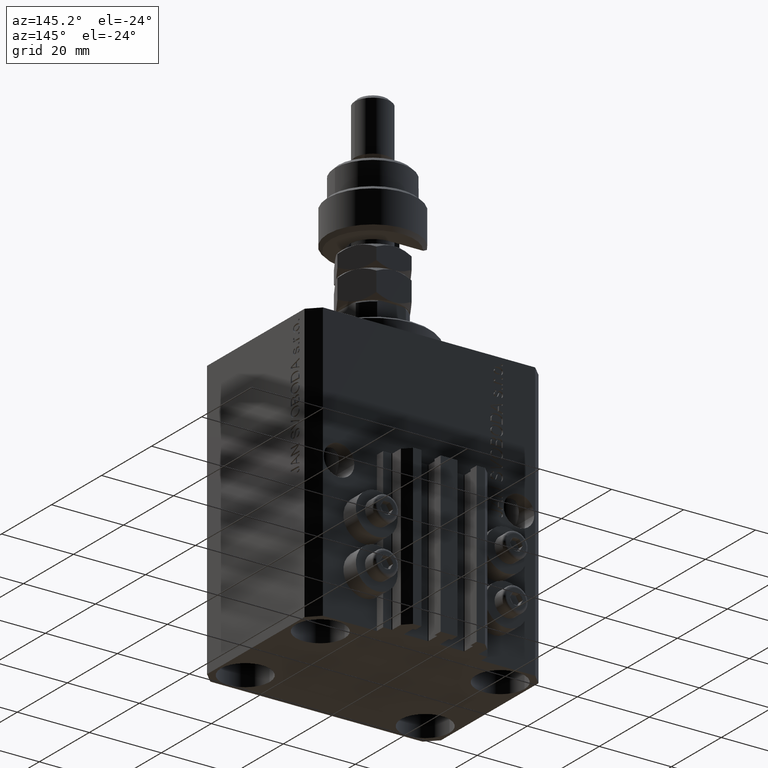
[diagram: clean part render]
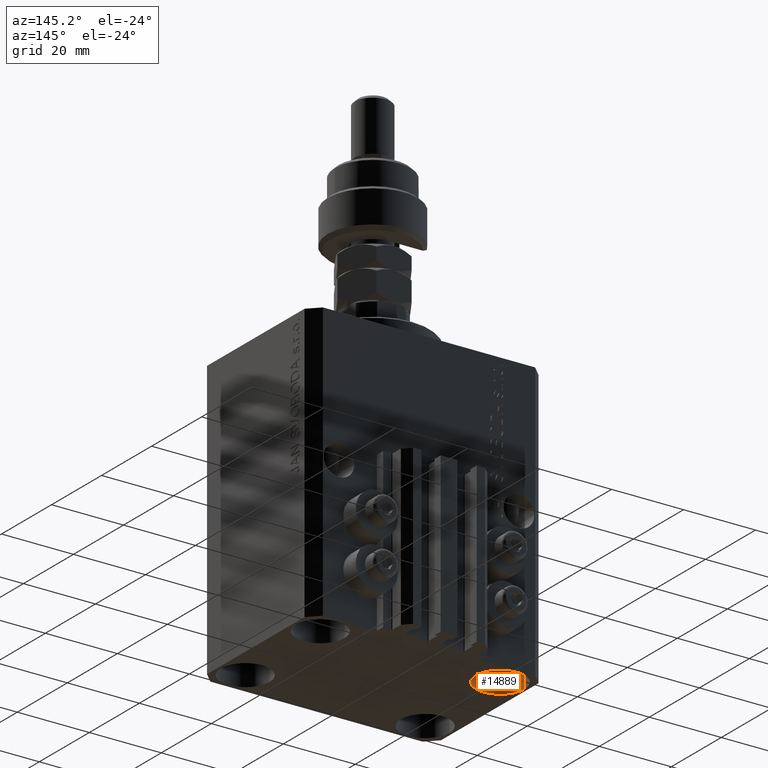
[diagram: same view with one face highlighted and labeled with its STEP entity id]
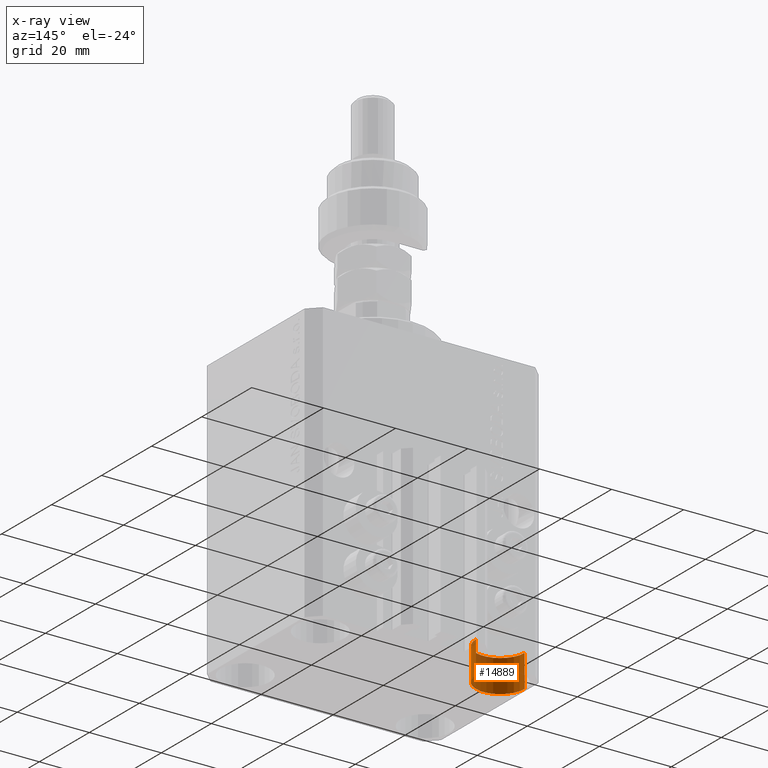
[diagram: x-ray of the same camera — body ghosted, the highlighted face saturated]
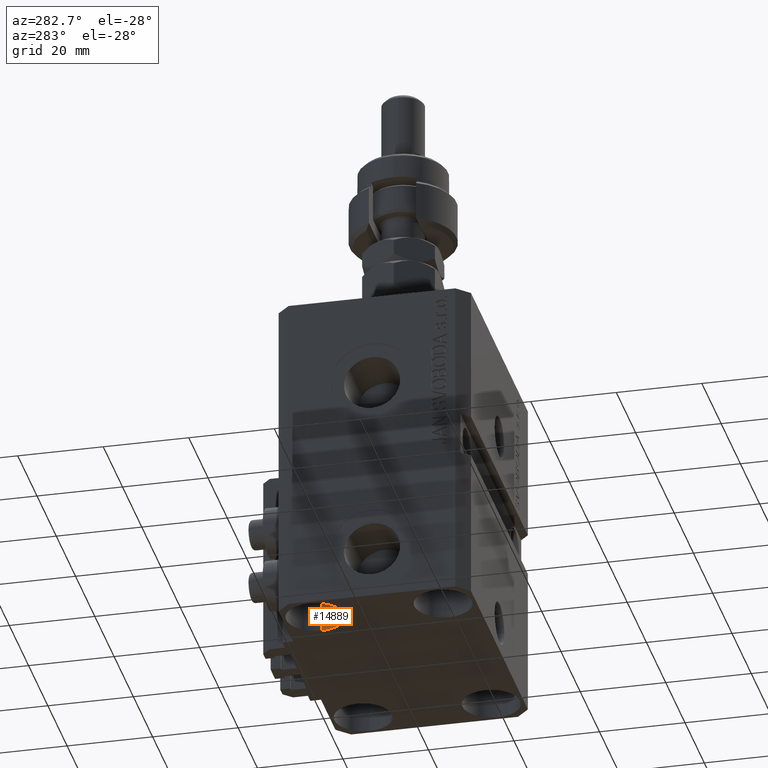
[diagram: same view with one face highlighted and labeled with its STEP entity id]
A machine part, auxiliary view. The second image highlights one B-rep face of the part: STEP entity #14889.
The next image is the same camera in x-ray: the body ghosted, the highlighted face saturated — about 5% of this face is hidden behind the body in this view.
A second angle (auxiliary view) of the same face is appended — the face is thin or edge-on in the first view.
In plain terms, the highlighted cylindrical surface (edge-blend (fillet) strip) has radius 6.75 mm, axis along (-0, -0, -1).
Its self-contained STEP definition (entity closure, byte-faithful):
#422 = EDGE_CURVE ( 'NONE', #49533, #36303, #38922, .T. ) ;
#2192 = EDGE_CURVE ( 'NONE', #6657, #35960, #44485, .T. ) ;
#3426 = CYLINDRICAL_SURFACE ( 'NONE', #37160, 6.750000000022533087 ) ;
#3882 = DIRECTION ( 'NONE',  ( 1.000000000000000000, 0.000000000000000000, 0.000000000000000000 ) ) ;
#6657 = VERTEX_POINT ( 'NONE', #45995 ) ;
#7952 = FACE_OUTER_BOUND ( 'NONE', #48334, .T. ) ;
#8904 = ORIENTED_EDGE ( 'NONE', *, *, #422, .T. ) ;
#10328 = DIRECTION ( 'NONE',  ( -0.000000000000000000, -0.000000000000000000, 1.000000000000000000 ) ) ;
#10384 = AXIS2_PLACEMENT_3D ( 'NONE', #17671, #10328, #21476 ) ;
#10385 = EDGE_CURVE ( 'NONE', #6657, #49533, #27339, .T. ) ;
#10780 = CARTESIAN_POINT ( 'NONE',  ( -31.75000000002253842, 15.00000000000000000, -68.00000000000000000 ) ) ;
#10999 = VECTOR ( 'NONE', #26212, 1000.000000000000000 ) ;
#11413 = ORIENTED_EDGE ( 'NONE', *, *, #2192, .F. ) ;
#14889 = ADVANCED_FACE ( 'NONE', ( #7952 ), #3426, .F. ) ;
#15928 = ORIENTED_EDGE ( 'NONE', *, *, #28209, .F. ) ;
#17671 = CARTESIAN_POINT ( 'NONE',  ( -25.00000000000000355, 15.00000000000000000, -68.00000000000000000 ) ) ;
#19077 = CARTESIAN_POINT ( 'NONE',  ( -25.00000000000000355, 15.00000000000000000, -68.00000000000000000 ) ) ;
#21476 = DIRECTION ( 'NONE',  ( 1.000000000000000000, 0.000000000000000000, 0.000000000000000000 ) ) ;
#21683 = CIRCLE ( 'NONE', #40276, 6.750000000022533087 ) ;
#23847 = CARTESIAN_POINT ( 'NONE',  ( -25.00000000000000355, 15.00000000000000000, -77.00000000000000000 ) ) ;
#26212 = DIRECTION ( 'NONE',  ( -0.000000000000000000, -0.000000000000000000, -1.000000000000000000 ) ) ;
#27155 = DIRECTION ( 'NONE',  ( -0.000000000000000000, -0.000000000000000000, -1.000000000000000000 ) ) ;
#27339 = CIRCLE ( 'NONE', #10384, 6.750000000022533087 ) ;
#28209 = EDGE_CURVE ( 'NONE', #35960, #36303, #21683, .T. ) ;
#31331 = DIRECTION ( 'NONE',  ( -0.000000000000000000, -0.000000000000000000, -1.000000000000000000 ) ) ;
#31945 = CARTESIAN_POINT ( 'NONE',  ( -18.24999999997747224, 15.00000000000000000, -77.00000000000000000 ) ) ;
#34966 = DIRECTION ( 'NONE',  ( -0.000000000000000000, -0.000000000000000000, 1.000000000000000000 ) ) ;
#35960 = VERTEX_POINT ( 'NONE', #37587 ) ;
#36049 = CARTESIAN_POINT ( 'NONE',  ( -18.24999999997747224, 15.00000000000000000, -68.00000000000000000 ) ) ;
#36303 = VERTEX_POINT ( 'NONE', #31945 ) ;
#37160 = AXIS2_PLACEMENT_3D ( 'NONE', #19077, #27155, #42097 ) ;
#37587 = CARTESIAN_POINT ( 'NONE',  ( -31.75000000002253842, 15.00000000000000000, -77.00000000000000000 ) ) ;
#38922 = LINE ( 'NONE', #39171, #44874 ) ;
#39171 = CARTESIAN_POINT ( 'NONE',  ( -18.24999999997747224, 15.00000000000000000, -68.00000000000000000 ) ) ;
#40276 = AXIS2_PLACEMENT_3D ( 'NONE', #23847, #34966, #3882 ) ;
#42097 = DIRECTION ( 'NONE',  ( -1.000000000000000000, 0.000000000000000000, 0.000000000000000000 ) ) ;
#42282 = ORIENTED_EDGE ( 'NONE', *, *, #10385, .T. ) ;
#44485 = LINE ( 'NONE', #10780, #10999 ) ;
#44874 = VECTOR ( 'NONE', #31331, 1000.000000000000000 ) ;
#45995 = CARTESIAN_POINT ( 'NONE',  ( -31.75000000002253842, 15.00000000000000000, -68.00000000000000000 ) ) ;
#48334 = EDGE_LOOP ( 'NONE', ( #42282, #8904, #15928, #11413 ) ) ;
#49533 = VERTEX_POINT ( 'NONE', #36049 ) ;